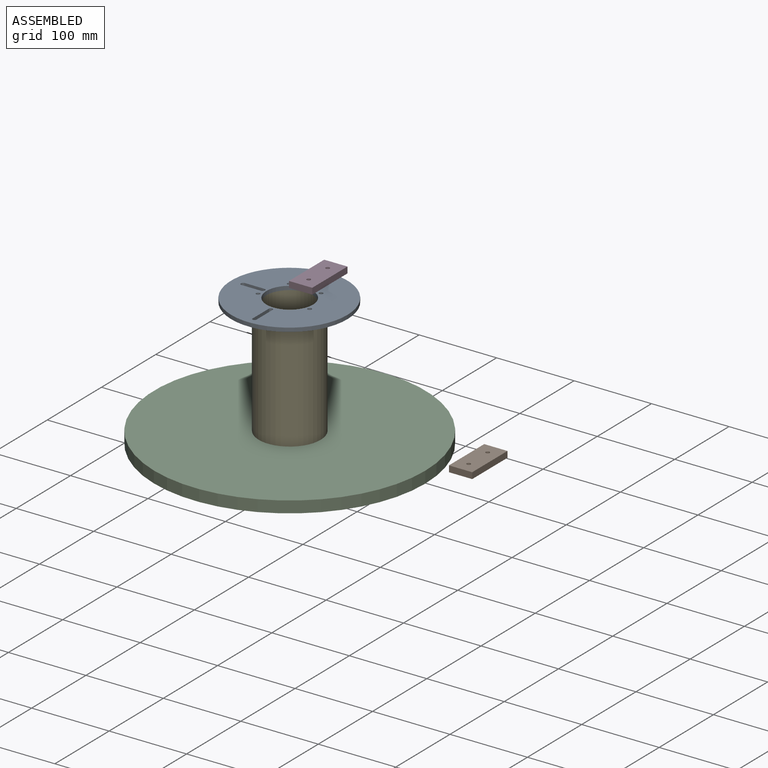
[diagram: assembled view]
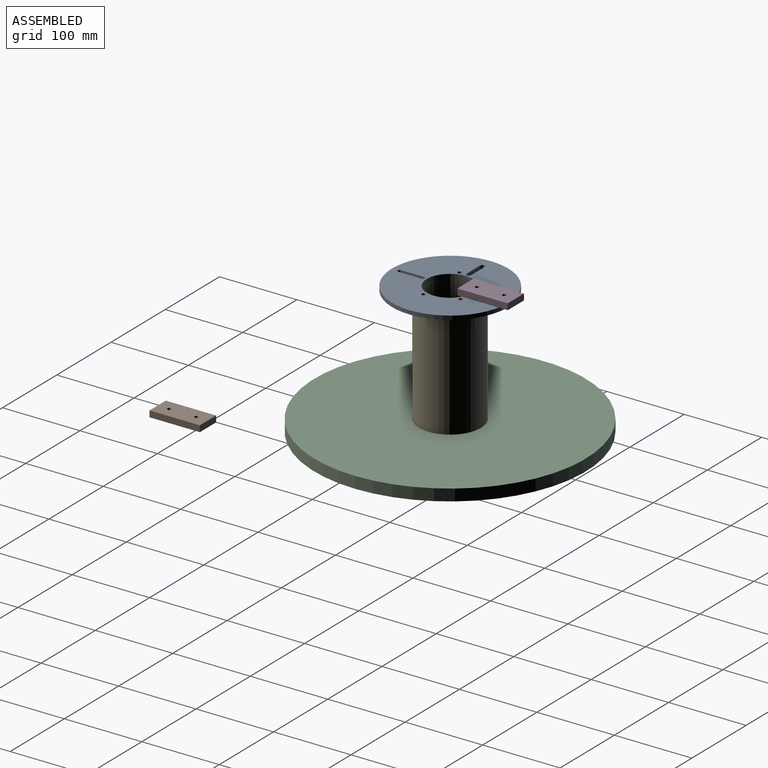
[diagram: assembled view, second angle]
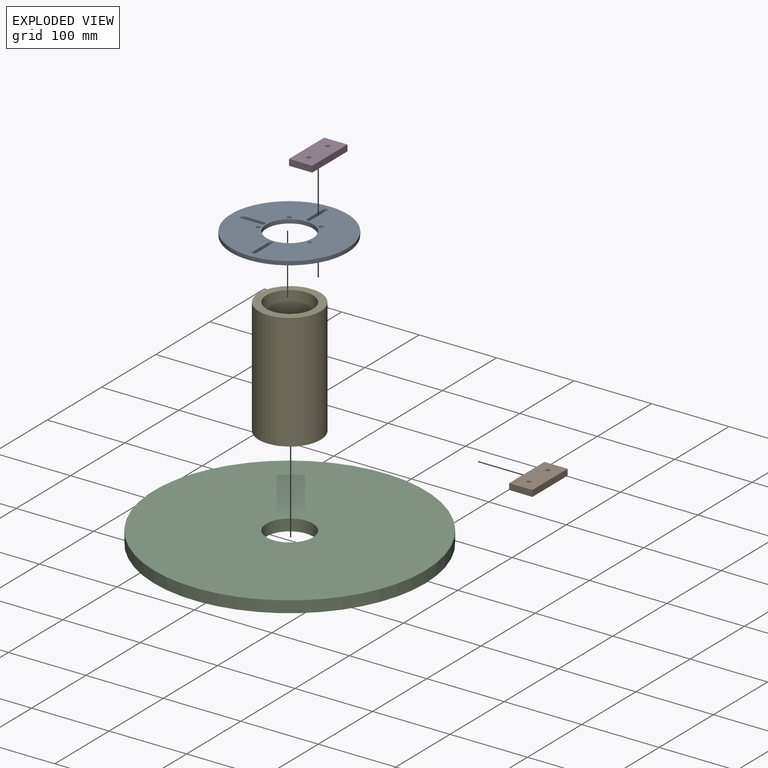
[diagram: exploded view]
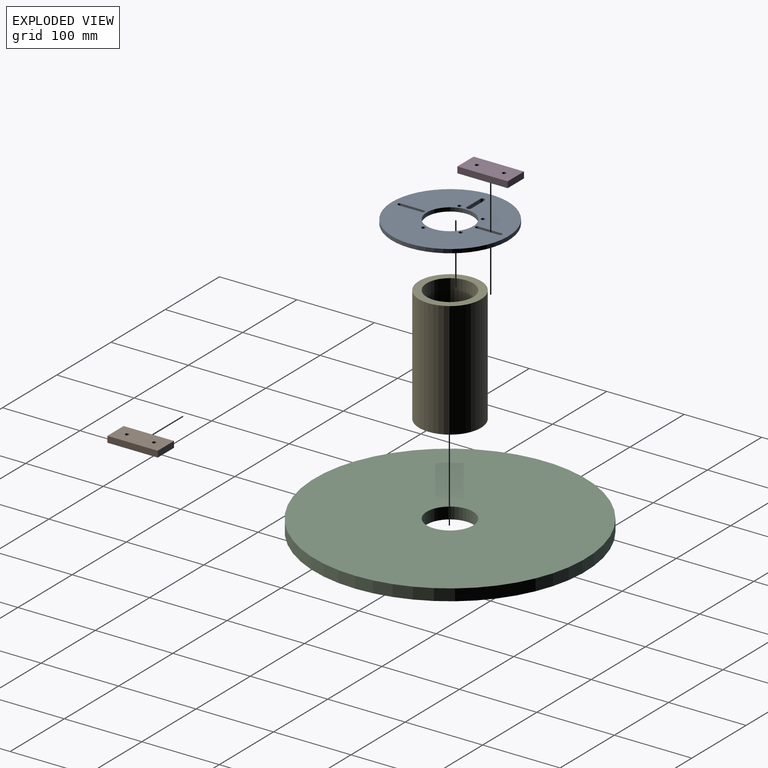
[diagram: exploded view, second angle]
ASSEMBLY  parts=5 mates=5
PART A: 20 faces, bbox 150x150x5 mm
  f0: plane 150x150mm, normal (0,0,1), area 14247.9mm2, adj f2,f3,f4,f5,f6,f7,f8,f9
  f1: plane 150x150mm, normal (0,0,-1), area 14247.9mm2, adj f2,f3,f4,f5,f6,f7,f8,f9
  f2: cylinder r=2.5mm len=5mm, axis (0,0,1), area 39.3mm2, adj f0,f1,f13,f15
  f3: cylinder r=30mm len=60mm, axis (0,0,-1), area 942.5mm2, adj f0,f1
  f4: cylinder r=75mm len=150mm, axis (0,0,-1), area 2356.2mm2, adj f0,f1
  f5: cylinder r=2.5mm len=5mm, axis (0,0,1), area 78.5mm2, adj f0,f1
  f6: cylinder r=2.5mm len=5mm, axis (0,0,1), area 78.5mm2, adj f0,f1
  f7: cylinder r=2.5mm len=5mm, axis (0,0,1), area 78.5mm2, adj f0,f1
  f8: cylinder r=2.5mm len=5mm, axis (0,0,1), area 78.5mm2, adj f0,f1
  f9: cylinder r=2.5mm len=5mm, axis (0,0,1), area 39.3mm2, adj f0,f1,f10,f11
  f10: plane 30x5mm, normal (1,0,0), area 150mm2, adj f0,f1,f9,f12
  f11: plane 30x5mm, normal (-1,0,0), area 150mm2, adj f0,f1,f9,f12
  f12: cylinder r=2.5mm len=5mm, axis (0,0,1), area 39.3mm2, adj f0,f1,f10,f11
  f13: plane 30x5mm, normal (-1,0,0), area 150mm2, adj f0,f1,f2,f14
  f14: cylinder r=2.5mm len=5mm, axis (0,0,1), area 39.3mm2, adj f0,f1,f13,f15
  f15: plane 30x5mm, normal (1,0,0), area 150mm2, adj f0,f1,f2,f14
  f16: plane 25x5mm, normal (0,-1,0), area 125mm2, adj f0,f1,f17,f18
  f17: cylinder r=3mm len=6mm, axis (0,0,1), area 47.1mm2, adj f0,f1,f16,f19
  f18: cylinder r=3mm len=6mm, axis (0,0,1), area 47.1mm2, adj f0,f1,f16,f19
  f19: plane 25x5mm, normal (0,1,0), area 125mm2, adj f0,f1,f17,f18
PART B: 8 faces, bbox 30x65x8 mm
  f0: plane 65x8mm, normal (1,0,0), area 520mm2, adj f1,f3,f4,f5
  f1: plane 30x8mm, normal (0,1,0), area 240mm2, adj f0,f2,f4,f5
  f2: plane 65x8mm, normal (-1,0,0), area 520mm2, adj f1,f3,f4,f5
  f3: plane 30x8mm, normal (0,-1,0), area 240mm2, adj f0,f2,f4,f5
  f4: plane 65x30mm, normal (0,0,1), area 1910.7mm2, adj f0,f1,f2,f3,f6,f7
  f5: plane 65x30mm, normal (0,0,-1), area 1910.7mm2, adj f0,f1,f2,f3,f6,f7
  f6: cylinder r=2.5mm len=8mm, axis (0,0,1), area 125.7mm2, adj f4,f5
  f7: cylinder r=2.5mm len=8mm, axis (0,0,1), area 125.7mm2, adj f4,f5
PART C: 4 faces, bbox 350x350x15 mm
  f0: cylinder r=175mm len=350mm, axis (0,0,-1), area 16493.4mm2, adj f1,f2
  f1: plane 350x350mm, normal (0,0,1), area 93383.8mm2, adj f0,f3
  f2: plane 350x350mm, normal (0,0,-1), area 93383.8mm2, adj f0,f3
  f3: cylinder r=30mm len=60mm, axis (0,0,1), area 2827.4mm2, adj f1,f2
PART D: same geometry as B
PART E: 4 faces, bbox 80x80x150 mm
  f0: cylinder r=30mm len=150mm, axis (0,0,-1), area 28274.3mm2, adj f2,f3
  f1: cylinder r=40mm len=150mm, axis (0,0,-1), area 37699.1mm2, adj f2,f3
  f2: plane 80x80mm, normal (0,0,1), area 2199.1mm2, adj f0,f1
  f3: plane 80x80mm, normal (0,0,-1), area 2199.1mm2, adj f0,f1
PLACE A rot(axis=(1,0,0),180deg) t=(-0.91,77.16,348.76)mm
PLACE B rot(axis=(0,0,-1),0deg) t=(324.41,-39.98,285.38)mm
PLACE C rot(axis=(0,0,1),0deg) t=(-0.91,77.16,178.76)mm
PLACE D rot(axis=(0,0,-1),0deg) t=(-0.91,129.66,348.76)mm
PLACE E rot(axis=(0,0,-1),180deg) t=(-0.91,77.16,193.76)mm
MATE planar C.f0 <-> E.f0  axis (0,0,1) through (-0.91,77.16,193.76)mm
MATE revolute C.f0 <-> E.f0  axis (0,0,1) through (-0.91,77.16,193.76)mm
MATE revolute E.f0 <-> A.f3  axis (0,0,1) through (-0.91,77.16,343.76)mm
MATE planar A.f5 <-> D.f5  axis (0,0,1) through (32.38,66.34,348.76)mm
MATE planar E.f0 <-> A.f5  axis (0,0,1) through (-0.91,77.16,343.76)mm
